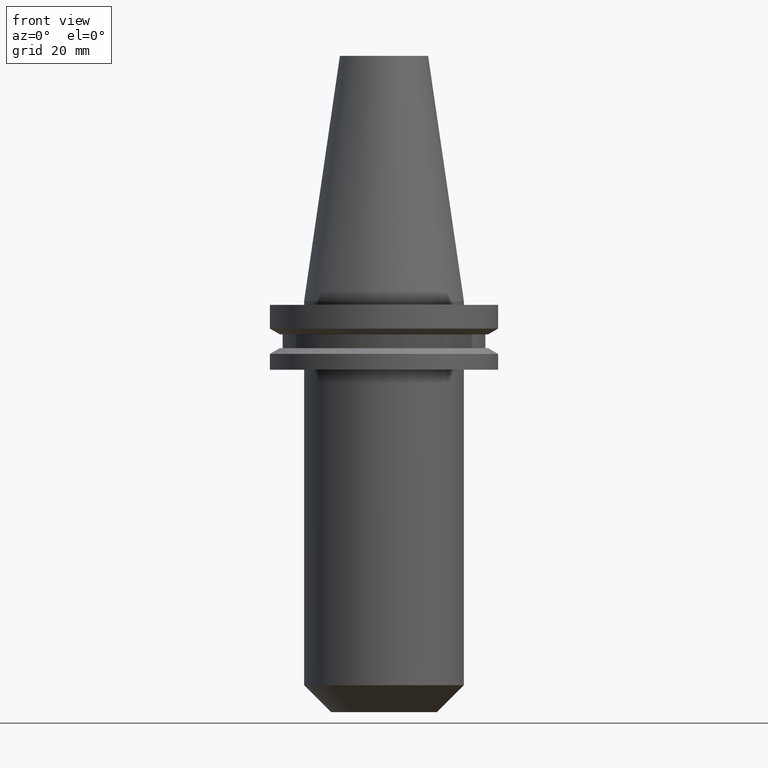
[diagram: clean part render]
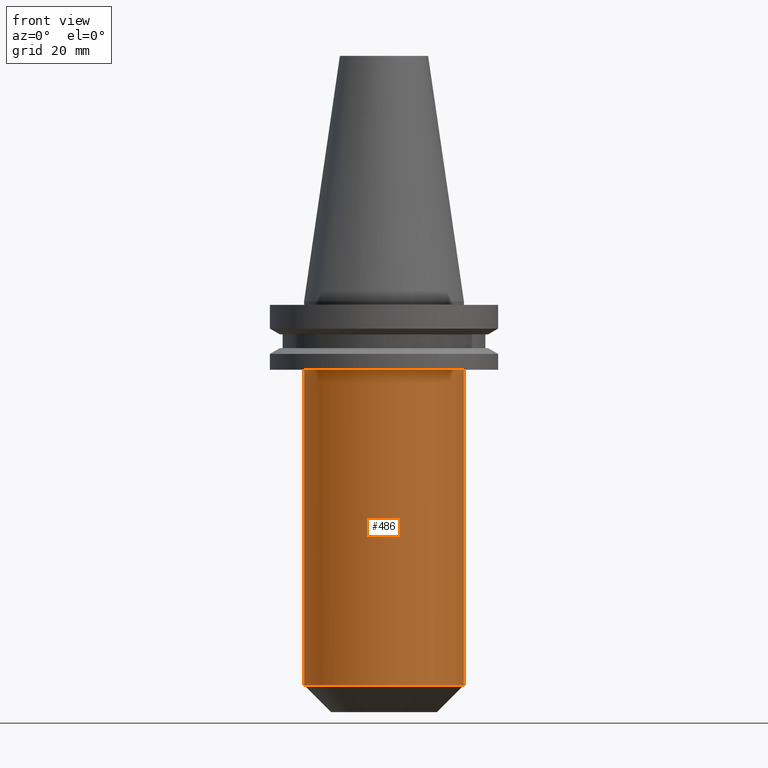
[diagram: same view with one face highlighted and labeled with its STEP entity id]
A machine part, front view. The second image highlights one B-rep face of the part: STEP entity #486.
In plain terms, the highlighted cylindrical surface (partial cylindrical patch) has radius 22.225 mm, axis along (-0, -0, 1).
Its self-contained STEP definition (entity closure, byte-faithful):
#102 = CARTESIAN_POINT ( 'NONE',  ( 0.000000000000000000, 0.000000000000000000, -106.8000000000000114 ) ) ;
#105 = VERTEX_POINT ( 'NONE', #588 ) ;
#108 = DIRECTION ( 'NONE',  ( 1.000000000000000000, 0.000000000000000000, 0.000000000000000000 ) ) ;
#112 = VERTEX_POINT ( 'NONE', #373 ) ;
#118 = DIRECTION ( 'NONE',  ( -0.000000000000000000, -0.000000000000000000, 1.000000000000000000 ) ) ;
#125 = DIRECTION ( 'NONE',  ( 1.000000000000000000, 0.000000000000000000, 0.000000000000000000 ) ) ;
#131 = AXIS2_PLACEMENT_3D ( 'NONE', #299, #606, #108 ) ;
#168 = CYLINDRICAL_SURFACE ( 'NONE', #131, 22.22500000000000142 ) ;
#183 = AXIS2_PLACEMENT_3D ( 'NONE', #102, #118, #363 ) ;
#194 = EDGE_CURVE ( 'NONE', #544, #105, #235, .T. ) ;
#199 = DIRECTION ( 'NONE',  ( -0.000000000000000000, -0.000000000000000000, 1.000000000000000000 ) ) ;
#235 = LINE ( 'NONE', #286, #327 ) ;
#251 = AXIS2_PLACEMENT_3D ( 'NONE', #617, #199, #125 ) ;
#286 = CARTESIAN_POINT ( 'NONE',  ( -22.22500000000000142, 2.721777511104992849E-15, 68.25000000000000000 ) ) ;
#298 = ORIENTED_EDGE ( 'NONE', *, *, #646, .F. ) ;
#299 = CARTESIAN_POINT ( 'NONE',  ( 0.000000000000000000, 0.000000000000000000, 68.25000000000000000 ) ) ;
#314 = VERTEX_POINT ( 'NONE', #749 ) ;
#327 = VECTOR ( 'NONE', #594, 1000.000000000000000 ) ;
#363 = DIRECTION ( 'NONE',  ( 1.000000000000000000, 0.000000000000000000, 0.000000000000000000 ) ) ;
#373 = CARTESIAN_POINT ( 'NONE',  ( 22.22500000000000142, 0.000000000000000000, -19.04999999999999716 ) ) ;
#407 = CARTESIAN_POINT ( 'NONE',  ( -22.22500000000000142, 2.721777511104992849E-15, -106.8000000000000114 ) ) ;
#468 = LINE ( 'NONE', #702, #474 ) ;
#470 = ORIENTED_EDGE ( 'NONE', *, *, #194, .F. ) ;
#474 = VECTOR ( 'NONE', #759, 1000.000000000000000 ) ;
#477 = EDGE_LOOP ( 'NONE', ( #470, #757, #667, #298 ) ) ;
#486 = ADVANCED_FACE ( 'NONE', ( #587 ), #168, .T. ) ;
#502 = CIRCLE ( 'NONE', #183, 22.22500000000000142 ) ;
#503 = CIRCLE ( 'NONE', #251, 22.22500000000000142 ) ;
#540 = EDGE_CURVE ( 'NONE', #314, #112, #468, .T. ) ;
#544 = VERTEX_POINT ( 'NONE', #407 ) ;
#559 = EDGE_CURVE ( 'NONE', #544, #314, #502, .T. ) ;
#587 = FACE_OUTER_BOUND ( 'NONE', #477, .T. ) ;
#588 = CARTESIAN_POINT ( 'NONE',  ( -22.22500000000000142, 2.721777511104992849E-15, -19.04999999999999716 ) ) ;
#594 = DIRECTION ( 'NONE',  ( -0.000000000000000000, -0.000000000000000000, 1.000000000000000000 ) ) ;
#606 = DIRECTION ( 'NONE',  ( -0.000000000000000000, -0.000000000000000000, 1.000000000000000000 ) ) ;
#617 = CARTESIAN_POINT ( 'NONE',  ( 0.000000000000000000, 0.000000000000000000, -19.04999999999999716 ) ) ;
#646 = EDGE_CURVE ( 'NONE', #105, #112, #503, .T. ) ;
#667 = ORIENTED_EDGE ( 'NONE', *, *, #540, .T. ) ;
#702 = CARTESIAN_POINT ( 'NONE',  ( 22.22500000000000142, 0.000000000000000000, 68.25000000000000000 ) ) ;
#749 = CARTESIAN_POINT ( 'NONE',  ( 22.22500000000000142, 0.000000000000000000, -106.8000000000000114 ) ) ;
#757 = ORIENTED_EDGE ( 'NONE', *, *, #559, .T. ) ;
#759 = DIRECTION ( 'NONE',  ( -0.000000000000000000, -0.000000000000000000, 1.000000000000000000 ) ) ;